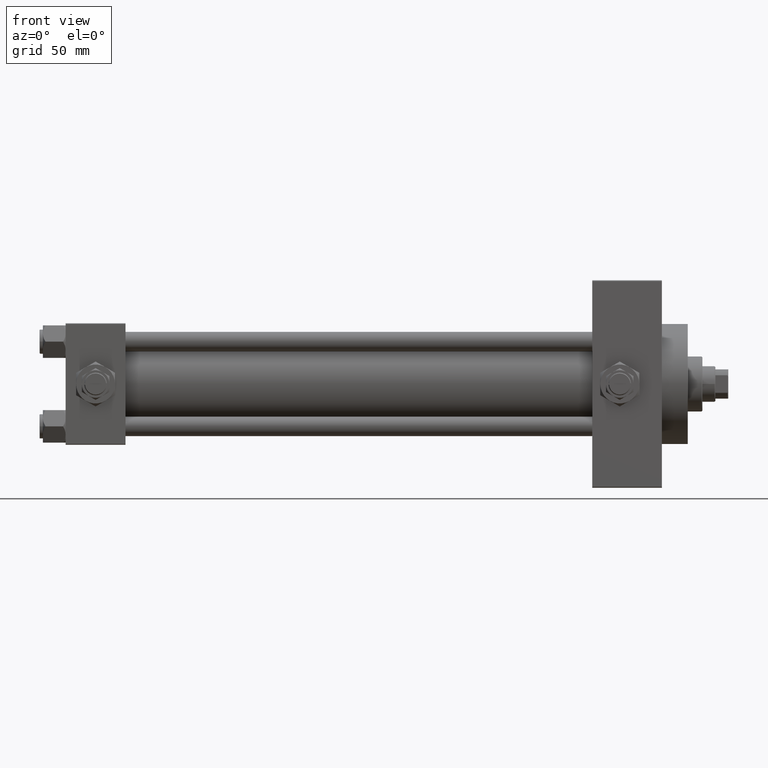
[diagram: clean part render]
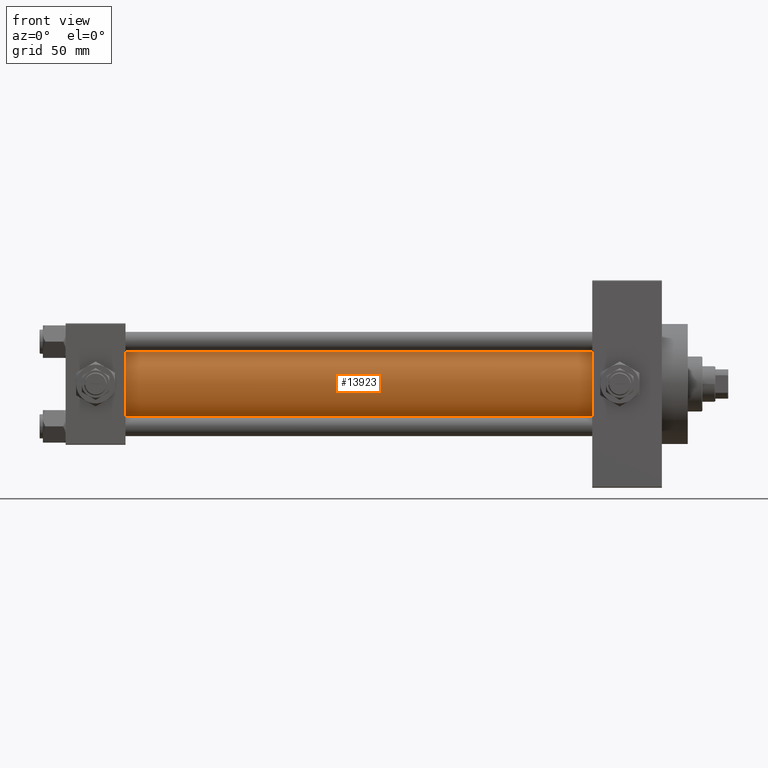
[diagram: same view with one face highlighted and labeled with its STEP entity id]
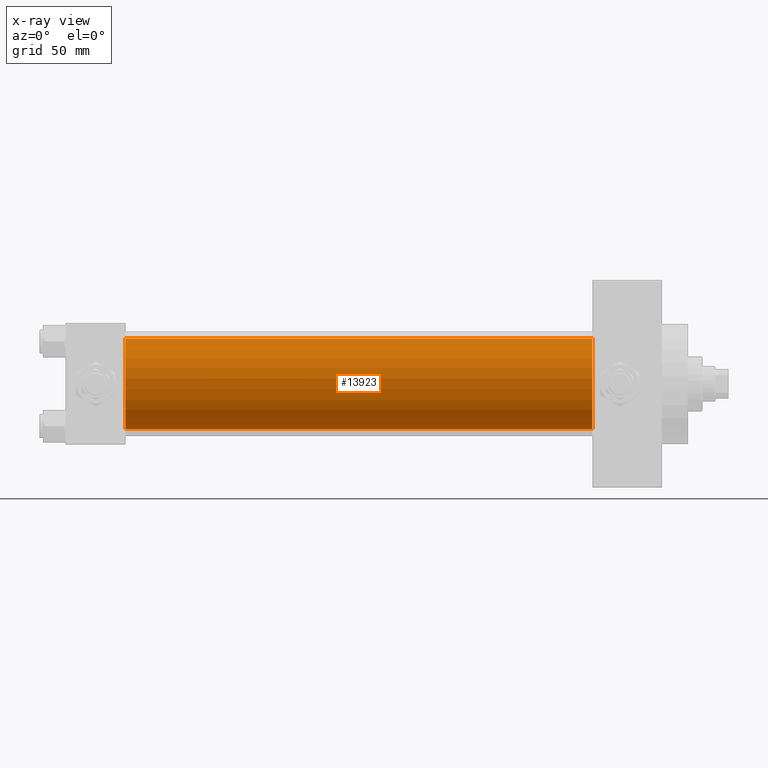
[diagram: x-ray of the same camera — body ghosted, the highlighted face saturated]
A machine part, front view. The second image highlights one B-rep face of the part: STEP entity #13923.
The next image is the same camera in x-ray: the body ghosted, the highlighted face saturated — about 0% of this face is hidden behind the body in this view.
In plain terms, the highlighted cylindrical surface (partial cylindrical patch) has radius 28 mm, axis along (-1, -0, -0).
Its self-contained STEP definition (entity closure, byte-faithful):
#1272 = CIRCLE ( 'NONE', #43463, 28.00000000000000000 ) ;
#3035 = DIRECTION ( 'NONE',  ( 0.000000000000000000, 0.000000000000000000, 1.000000000000000000 ) ) ;
#3499 = LINE ( 'NONE', #3751, #10919 ) ;
#3751 = CARTESIAN_POINT ( 'NONE',  ( 324.9999999999999432, -2.602085213965210642E-15, 28.00000000000000000 ) ) ;
#3880 = CARTESIAN_POINT ( 'NONE',  ( 324.9999999999999432, 8.269258236473784371E-16, -28.00000000000000000 ) ) ;
#3905 = CARTESIAN_POINT ( 'NONE',  ( 324.9999999999999432, 8.269258236473784371E-16, -28.00000000000000000 ) ) ;
#4038 = EDGE_LOOP ( 'NONE', ( #46556, #17727, #19408, #15203 ) ) ;
#7356 = AXIS2_PLACEMENT_3D ( 'NONE', #37147, #24953, #3035 ) ;
#8569 = EDGE_CURVE ( 'NONE', #20144, #16033, #1272, .T. ) ;
#10919 = VECTOR ( 'NONE', #11719, 1000.000000000000000 ) ;
#11719 = DIRECTION ( 'NONE',  ( -1.000000000000000000, -0.000000000000000000, -0.000000000000000000 ) ) ;
#13273 = VECTOR ( 'NONE', #16294, 1000.000000000000000 ) ;
#13923 = ADVANCED_FACE ( 'NONE', ( #17735 ), #29198, .T. ) ;
#15203 = ORIENTED_EDGE ( 'NONE', *, *, #8569, .T. ) ;
#16033 = VERTEX_POINT ( 'NONE', #30460 ) ;
#16294 = DIRECTION ( 'NONE',  ( -1.000000000000000000, -0.000000000000000000, -0.000000000000000000 ) ) ;
#17727 = ORIENTED_EDGE ( 'NONE', *, *, #40984, .F. ) ;
#17735 = FACE_OUTER_BOUND ( 'NONE', #4038, .T. ) ;
#19408 = ORIENTED_EDGE ( 'NONE', *, *, #30452, .T. ) ;
#20144 = VERTEX_POINT ( 'NONE', #44957 ) ;
#24953 = DIRECTION ( 'NONE',  ( -1.000000000000000000, -0.000000000000000000, -0.000000000000000000 ) ) ;
#26541 = DIRECTION ( 'NONE',  ( 1.000000000000000000, 0.000000000000000000, 0.000000000000000000 ) ) ;
#26964 = VERTEX_POINT ( 'NONE', #3905 ) ;
#29198 = CYLINDRICAL_SURFACE ( 'NONE', #7356, 28.00000000000000000 ) ;
#29733 = CARTESIAN_POINT ( 'NONE',  ( 324.9999999999999432, -2.602085213965210642E-15, 28.00000000000000000 ) ) ;
#30452 = EDGE_CURVE ( 'NONE', #39285, #20144, #3499, .T. ) ;
#30460 = CARTESIAN_POINT ( 'NONE',  ( 36.99999999999997868, 8.269258236473784371E-16, -28.00000000000000000 ) ) ;
#31123 = EDGE_CURVE ( 'NONE', #26964, #16033, #41981, .T. ) ;
#36422 = AXIS2_PLACEMENT_3D ( 'NONE', #41985, #26541, #46894 ) ;
#36695 = DIRECTION ( 'NONE',  ( 1.000000000000000000, -0.000000000000000000, 0.000000000000000000 ) ) ;
#37147 = CARTESIAN_POINT ( 'NONE',  ( 324.9999999999999432, -2.602085213965210642E-15, 0.000000000000000000 ) ) ;
#37435 = CARTESIAN_POINT ( 'NONE',  ( 36.99999999999997868, -2.602085213965210642E-15, 0.000000000000000000 ) ) ;
#39285 = VERTEX_POINT ( 'NONE', #29733 ) ;
#39617 = CIRCLE ( 'NONE', #36422, 28.00000000000000000 ) ;
#40984 = EDGE_CURVE ( 'NONE', #39285, #26964, #39617, .T. ) ;
#41981 = LINE ( 'NONE', #3880, #13273 ) ;
#41985 = CARTESIAN_POINT ( 'NONE',  ( 324.9999999999999432, -2.602085213965210642E-15, 0.000000000000000000 ) ) ;
#43463 = AXIS2_PLACEMENT_3D ( 'NONE', #37435, #36695, #45186 ) ;
#44957 = CARTESIAN_POINT ( 'NONE',  ( 36.99999999999997868, -2.602085213965210642E-15, 28.00000000000000000 ) ) ;
#45186 = DIRECTION ( 'NONE',  ( 0.000000000000000000, 0.000000000000000000, 1.000000000000000000 ) ) ;
#46556 = ORIENTED_EDGE ( 'NONE', *, *, #31123, .F. ) ;
#46894 = DIRECTION ( 'NONE',  ( 0.000000000000000000, 0.000000000000000000, -1.000000000000000000 ) ) ;